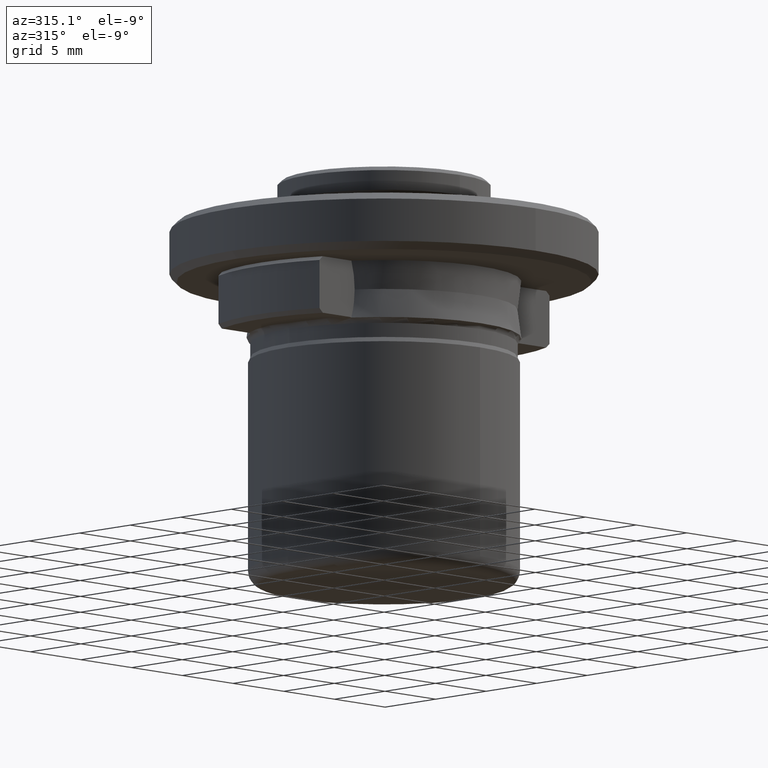
[diagram: clean part render]
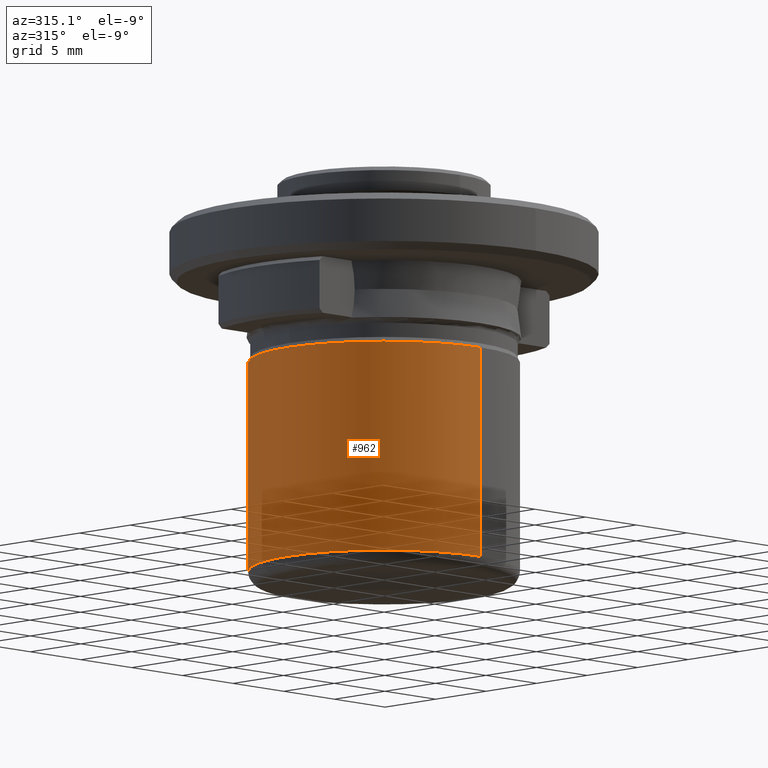
[diagram: same view with one face highlighted and labeled with its STEP entity id]
A machine part, auxiliary view. The second image highlights one B-rep face of the part: STEP entity #962.
In plain terms, the highlighted cylindrical surface (partial cylindrical patch) has radius 9.5 mm, axis along (0, -0, 1).
Its self-contained STEP definition (entity closure, byte-faithful):
#6 = ORIENTED_EDGE ( 'NONE', *, *, #98, .T. ) ;
#63 = DIRECTION ( 'NONE',  ( 0.0000000000000000000, -1.000000000000000000, 0.0000000000000000000 ) ) ;
#98 = EDGE_CURVE ( 'NONE', #1878, #1346, #1258, .T. ) ;
#112 = CARTESIAN_POINT ( 'NONE',  ( 0.0000000000000000000, 2.364620801796248300E-016, -11.75000000000000000 ) ) ;
#156 = DIRECTION ( 'NONE',  ( 0.0000000000000000000, 0.0000000000000000000, -1.000000000000000000 ) ) ;
#214 = DIRECTION ( 'NONE',  ( 1.000000000000000000, 0.0000000000000000000, 0.0000000000000000000 ) ) ;
#223 = DIRECTION ( 'NONE',  ( 0.0000000000000000000, -4.565061778886334800E-017, 1.000000000000000000 ) ) ;
#269 = CARTESIAN_POINT ( 'NONE',  ( 0.0000000000000000000, -9.500000000000000000, 3.030000000000088200 ) ) ;
#334 = AXIS2_PLACEMENT_3D ( 'NONE', #381, #884, #63 ) ;
#381 = CARTESIAN_POINT ( 'NONE',  ( 0.0000000000000000000, 0.0000000000000000000, -6.570177872000000400 ) ) ;
#520 = ORIENTED_EDGE ( 'NONE', *, *, #2026, .T. ) ;
#549 = DIRECTION ( 'NONE',  ( 0.0000000000000000000, 0.0000000000000000000, 1.000000000000000000 ) ) ;
#573 = VERTEX_POINT ( 'NONE', #2056 ) ;
#629 = DIRECTION ( 'NONE',  ( 0.0000000000000000000, 0.0000000000000000000, 1.000000000000000000 ) ) ;
#661 = EDGE_LOOP ( 'NONE', ( #772, #1592, #520, #6, #943, #2141 ) ) ;
#675 = CARTESIAN_POINT ( 'NONE',  ( 0.0000000000000000000, 0.0000000000000000000, 3.030000000000088200 ) ) ;
#722 = CIRCLE ( 'NONE', #1020, 9.500000000000000000 ) ;
#734 = AXIS2_PLACEMENT_3D ( 'NONE', #112, #629, #1945 ) ;
#772 = ORIENTED_EDGE ( 'NONE', *, *, #1523, .F. ) ;
#802 = VECTOR ( 'NONE', #2183, 1000.000000000000000 ) ;
#884 = DIRECTION ( 'NONE',  ( 0.0000000000000000000, -4.565061778886334800E-017, 1.000000000000000000 ) ) ;
#943 = ORIENTED_EDGE ( 'NONE', *, *, #1066, .T. ) ;
#962 = ADVANCED_FACE ( 'NONE', ( #1942 ), #1090, .T. ) ;
#984 = CARTESIAN_POINT ( 'NONE',  ( 0.0000000000000000000, -9.500000000000000000, -6.570177872000000400 ) ) ;
#1020 = AXIS2_PLACEMENT_3D ( 'NONE', #1516, #156, #1336 ) ;
#1041 = CARTESIAN_POINT ( 'NONE',  ( -9.499999999999957400, 0.0000000000000000000, 3.030000000000088200 ) ) ;
#1066 = EDGE_CURVE ( 'NONE', #1346, #2107, #1897, .T. ) ;
#1090 = CYLINDRICAL_SURFACE ( 'NONE', #334, 9.500000000000000000 ) ;
#1107 = VECTOR ( 'NONE', #223, 1000.000000000000000 ) ;
#1157 = LINE ( 'NONE', #1588, #1107 ) ;
#1174 = CARTESIAN_POINT ( 'NONE',  ( -9.500000000000001800, 1.399876539369610000E-015, -11.75000000000000000 ) ) ;
#1250 = AXIS2_PLACEMENT_3D ( 'NONE', #675, #1705, #1353 ) ;
#1258 = LINE ( 'NONE', #984, #802 ) ;
#1336 = DIRECTION ( 'NONE',  ( -1.000000000000000000, 0.0000000000000000000, -9.312726028928122700E-015 ) ) ;
#1346 = VERTEX_POINT ( 'NONE', #269 ) ;
#1353 = DIRECTION ( 'NONE',  ( -1.000000000000000000, 0.0000000000000000000, -9.312726028928122700E-015 ) ) ;
#1378 = VERTEX_POINT ( 'NONE', #1961 ) ;
#1500 = CARTESIAN_POINT ( 'NONE',  ( 0.0000000000000000000, -9.500000000000000000, -11.75000000000000000 ) ) ;
#1516 = CARTESIAN_POINT ( 'NONE',  ( 0.0000000000000000000, 0.0000000000000000000, 3.030000000000088200 ) ) ;
#1523 = EDGE_CURVE ( 'NONE', #573, #1378, #1157, .T. ) ;
#1573 = CARTESIAN_POINT ( 'NONE',  ( 0.0000000000000000000, 2.364620801796248300E-016, -11.75000000000000000 ) ) ;
#1588 = CARTESIAN_POINT ( 'NONE',  ( 1.163414459189985500E-015, 9.500000000000000000, -6.570177872000000400 ) ) ;
#1592 = ORIENTED_EDGE ( 'NONE', *, *, #1595, .T. ) ;
#1595 = EDGE_CURVE ( 'NONE', #573, #1813, #1913, .T. ) ;
#1705 = DIRECTION ( 'NONE',  ( 0.0000000000000000000, 0.0000000000000000000, -1.000000000000000000 ) ) ;
#1744 = AXIS2_PLACEMENT_3D ( 'NONE', #1573, #549, #214 ) ;
#1813 = VERTEX_POINT ( 'NONE', #1174 ) ;
#1823 = EDGE_CURVE ( 'NONE', #2107, #1378, #722, .T. ) ;
#1828 = CIRCLE ( 'NONE', #734, 9.500000000000000000 ) ;
#1878 = VERTEX_POINT ( 'NONE', #1500 ) ;
#1897 = CIRCLE ( 'NONE', #1250, 9.500000000000000000 ) ;
#1913 = CIRCLE ( 'NONE', #1744, 9.500000000000000000 ) ;
#1942 = FACE_OUTER_BOUND ( 'NONE', #661, .T. ) ;
#1945 = DIRECTION ( 'NONE',  ( 1.000000000000000000, 0.0000000000000000000, 0.0000000000000000000 ) ) ;
#1961 = CARTESIAN_POINT ( 'NONE',  ( 1.163414459189985500E-015, 9.500000000000000000, 3.030000000000088200 ) ) ;
#2026 = EDGE_CURVE ( 'NONE', #1813, #1878, #1828, .T. ) ;
#2056 = CARTESIAN_POINT ( 'NONE',  ( 1.163414459189985500E-015, 9.500000000000000000, -11.75000000000000000 ) ) ;
#2107 = VERTEX_POINT ( 'NONE', #1041 ) ;
#2141 = ORIENTED_EDGE ( 'NONE', *, *, #1823, .T. ) ;
#2183 = DIRECTION ( 'NONE',  ( 0.0000000000000000000, -4.565061778886334800E-017, 1.000000000000000000 ) ) ;